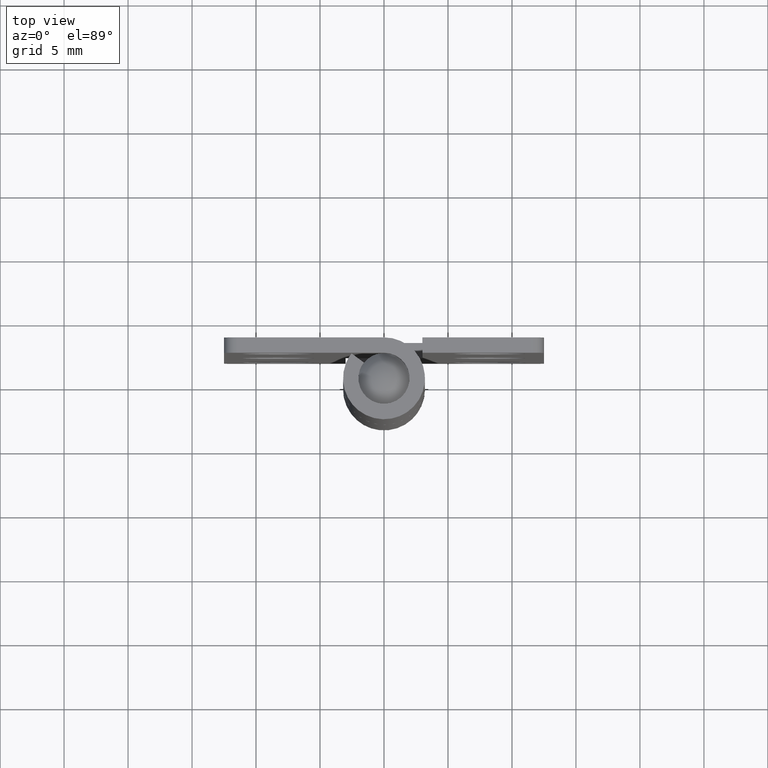
[diagram: clean part render]
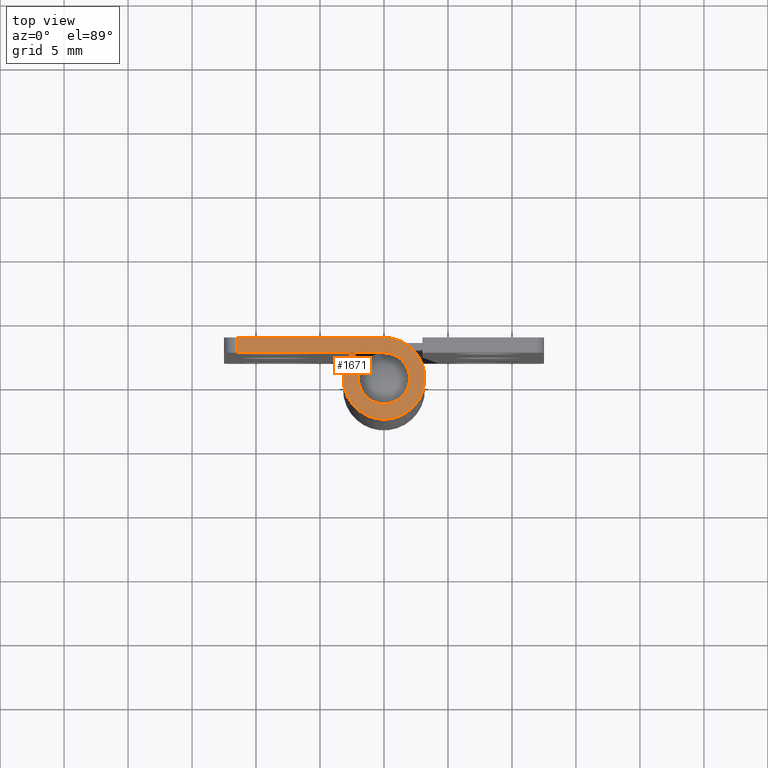
[diagram: same view with one face highlighted and labeled with its STEP entity id]
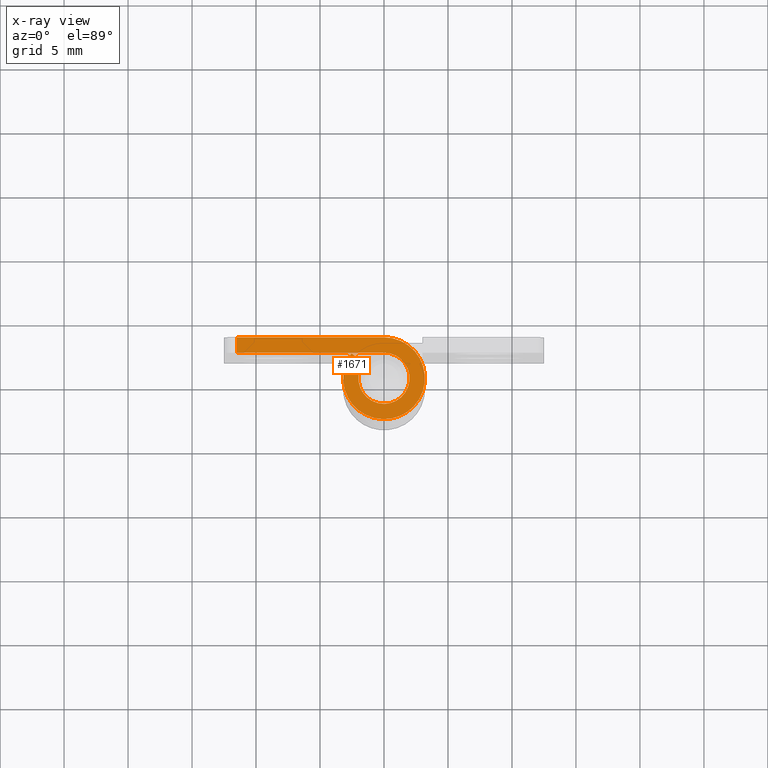
[diagram: x-ray of the same camera — body ghosted, the highlighted face saturated]
A machine part, top view. The second image highlights one B-rep face of the part: STEP entity #1671.
The next image is the same camera in x-ray: the body ghosted, the highlighted face saturated — about 0% of this face is hidden behind the body in this view.
In plain terms, the highlighted face is a freeform B-spline surface patch.
Its self-contained STEP definition (entity closure, byte-faithful):
#1437=CARTESIAN_POINT('',(-11.500000000000000,2.0,50.0));
#1438=VERTEX_POINT('',#1437);
#1456=CARTESIAN_POINT('',(-11.500000000000000,3.200000999999955,50.0));
#1457=VERTEX_POINT('',#1456);
#1458=CARTESIAN_POINT('',(-11.500000000000000,3.200000999999955,50.0));
#1459=CARTESIAN_POINT('',(-11.500000000000000,2.0,50.0));
#1460=QUASI_UNIFORM_CURVE('',1,(#1458,#1459),.UNSPECIFIED.,.F.,.U.);
#1461=EDGE_CURVE('',#1457,#1438,#1460,.T.);
#1572=CARTESIAN_POINT('',(-1.585764307045660,1.218750000000000,50.0));
#1573=VERTEX_POINT('',#1572);
#1579=CARTESIAN_POINT('',(-1.653896E-015,2.0,50.0));
#1580=VERTEX_POINT('',#1579);
#1581=CARTESIAN_POINT('',(0.0,2.0,50.0));
#1582=CARTESIAN_POINT('',(1.587628133991657,1.999999999999999,50.0));
#1583=CARTESIAN_POINT('',(1.947841757381978,0.453775812708309,50.0));
#1584=CARTESIAN_POINT('',(2.308055380772299,-1.092448374583384,50.0));
#1585=CARTESIAN_POINT('',(0.883883476483185,-1.794087511800915,50.0));
#1586=CARTESIAN_POINT('',(-0.540288427805928,-2.495726649018445,50.0));
#1587=CARTESIAN_POINT('',(-1.546756814501377,-1.267889331445593,50.0));
#1588=CARTESIAN_POINT('',(-2.553225201196828,-0.040052013872740,50.0));
#1589=CARTESIAN_POINT('',(-1.585764307045660,1.218749999999999,50.0));
#1597=(BOUNDED_CURVE()B_SPLINE_CURVE(2,(#1581,#1582,#1583,#1584,#1585,#1586,#1587,#1588,#1589),.UNSPECIFIED.,.F.,.U.)B_SPLINE_CURVE_WITH_KNOTS((3,2,2,2,3),(0.0,0.250000000000000,0.500000000000000,0.750000000000000,1.0),.UNSPECIFIED.)CURVE()GEOMETRIC_REPRESENTATION_ITEM()RATIONAL_B_SPLINE_CURVE((1.0,0.783226629512223,1.0,0.783226629512223,1.0,0.783226629512223,1.0,0.783226629512223,1.0))REPRESENTATION_ITEM(''));
#1598=EDGE_CURVE('',#1580,#1573,#1597,.T.);
#1615=CARTESIAN_POINT('',(-2.537223684155205,1.950000609375005,50.0));
#1616=VERTEX_POINT('',#1615);
#1622=CARTESIAN_POINT('',(-2.537223684155205,1.950000609375005,50.0));
#1623=CARTESIAN_POINT('',(-1.585764307045660,1.218750000000000,50.0));
#1624=QUASI_UNIFORM_CURVE('',1,(#1622,#1623),.UNSPECIFIED.,.F.,.U.);
#1625=EDGE_CURVE('',#1616,#1573,#1624,.T.);
#1630=CARTESIAN_POINT('',(-12.234140314326790,-3.509201395094229,50.0));
#1631=CARTESIAN_POINT('',(3.931645069173402,-3.509201395094229,50.0));
#1632=CARTESIAN_POINT('',(-12.234140314326790,3.519182701228337,50.0));
#1633=CARTESIAN_POINT('',(3.931645069173402,3.519182701228337,50.0));
#1634=B_SPLINE_SURFACE_WITH_KNOTS('',1,1,((#1630,#1632),(#1631,#1633)),.UNSPECIFIED.,.F.,.F.,.U.,(2,2),(2,2),(0.0,16.165785383500189),(0.0,7.028384096322565),.UNSPECIFIED.);
#1635=ORIENTED_EDGE('',*,*,#1461,.T.);
#1636=CARTESIAN_POINT('',(-1.653896E-015,2.0,50.0));
#1637=CARTESIAN_POINT('',(-11.500000000000000,2.0,50.0));
#1638=QUASI_UNIFORM_CURVE('',1,(#1636,#1637),.UNSPECIFIED.,.F.,.U.);
#1639=EDGE_CURVE('',#1580,#1438,#1638,.T.);
#1640=ORIENTED_EDGE('',*,*,#1639,.F.);
#1641=ORIENTED_EDGE('',*,*,#1598,.T.);
#1642=ORIENTED_EDGE('',*,*,#1625,.F.);
#1643=CARTESIAN_POINT('',(0.0,3.200001000000000,50.0));
#1644=VERTEX_POINT('',#1643);
#1645=CARTESIAN_POINT('',(0.0,3.200001000000000,50.0));
#1646=CARTESIAN_POINT('',(2.540205808200722,3.200001000000000,50.000000000000014));
#1647=CARTESIAN_POINT('',(3.116547785732045,0.726041527221199,50.0));
#1648=CARTESIAN_POINT('',(3.692889763263367,-1.747917945557606,50.000000000000014));
#1649=CARTESIAN_POINT('',(1.414214004314832,-2.870540915925222,50.0));
#1650=CARTESIAN_POINT('',(-0.864461754633704,-3.993163886292837,50.000000000000014));
#1651=CARTESIAN_POINT('',(-2.474811676580615,-2.028623564257610,50.0));
#1652=CARTESIAN_POINT('',(-4.085161598527523,-0.064083242222384,50.000000000000014));
#1653=CARTESIAN_POINT('',(-2.537223684155206,1.950000609375003,50.0));
#1661=(BOUNDED_CURVE()B_SPLINE_CURVE(2,(#1645,#1646,#1647,#1648,#1649,#1650,#1651,#1652,#1653),.UNSPECIFIED.,.F.,.U.)B_SPLINE_CURVE_WITH_KNOTS((3,2,2,2,3),(0.0,0.250000000000000,0.500000000000000,0.750000000000000,1.0),.UNSPECIFIED.)CURVE()GEOMETRIC_REPRESENTATION_ITEM()RATIONAL_B_SPLINE_CURVE((1.0,0.783226629512223,1.0,0.783226629512223,1.0,0.783226629512223,1.0,0.783226629512223,1.0))REPRESENTATION_ITEM(''));
#1662=EDGE_CURVE('',#1644,#1616,#1661,.T.);
#1663=ORIENTED_EDGE('',*,*,#1662,.F.);
#1664=CARTESIAN_POINT('',(-11.500000000000000,3.200000999999955,50.0));
#1665=CARTESIAN_POINT('',(0.0,3.200001000000000,50.0));
#1666=QUASI_UNIFORM_CURVE('',1,(#1664,#1665),.UNSPECIFIED.,.F.,.U.);
#1667=EDGE_CURVE('',#1457,#1644,#1666,.T.);
#1668=ORIENTED_EDGE('',*,*,#1667,.F.);
#1669=EDGE_LOOP('',(#1635,#1640,#1641,#1642,#1663,#1668));
#1670=FACE_OUTER_BOUND('',#1669,.T.);
#1671=ADVANCED_FACE('',(#1670),#1634,.T.);